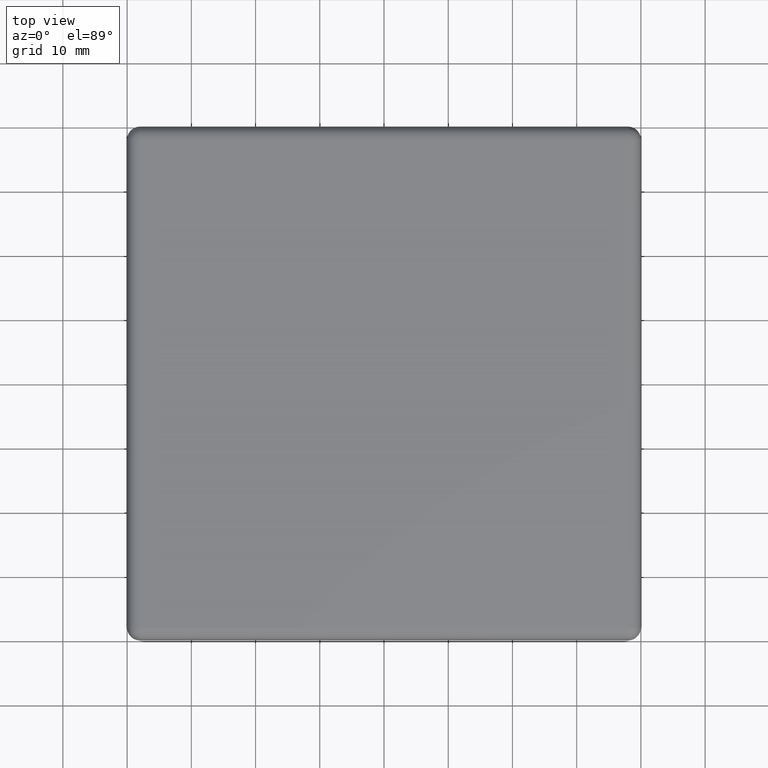
[diagram: clean part render]
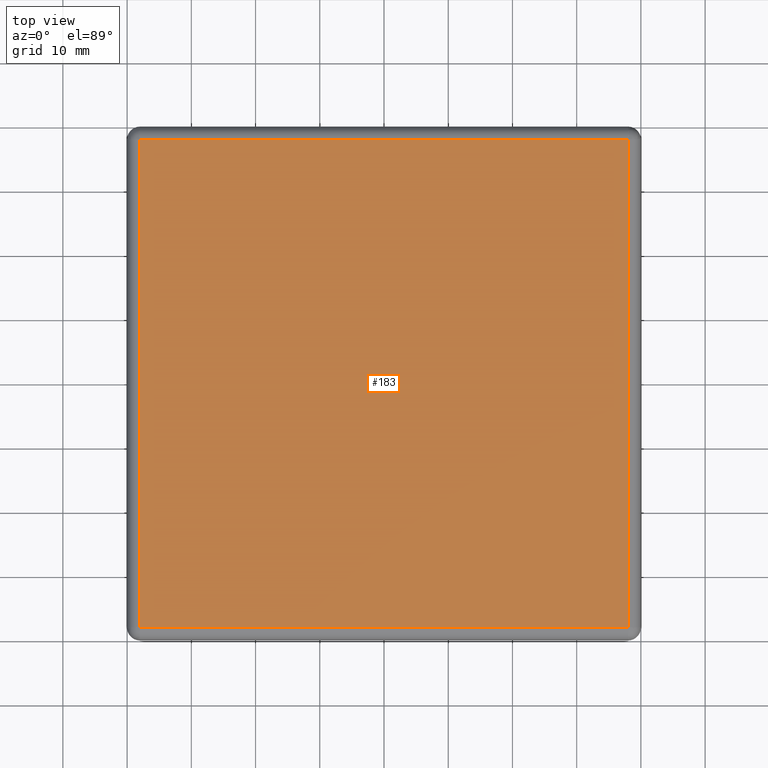
[diagram: same view with one face highlighted and labeled with its STEP entity id]
A machine part, top view. The second image highlights one B-rep face of the part: STEP entity #183.
In plain terms, the highlighted planar face has unit normal (0, 0, 1).
Its self-contained STEP definition (entity closure, byte-faithful):
#144=CARTESIAN_POINT('',(-48.000004724429267,-8.000004724580791,2.999999333987962));
#145=DIRECTION('',(0.0,0.0,1.0));
#146=DIRECTION('',(1.0,0.0,0.0));
#147=AXIS2_PLACEMENT_3D('',#144,#145,#146);
#148=PLANE('',#147);
#149=CARTESIAN_POINT('',(37.999999999839922,2.0,2.999999333987962));
#150=VERTEX_POINT('',#149);
#151=CARTESIAN_POINT('',(37.999999999839936,77.999999999679886,2.999999333987962));
#152=VERTEX_POINT('',#151);
#153=CARTESIAN_POINT('',(37.999999999839922,2.0,2.999999333987962));
#154=DIRECTION('',(0.0,1.0,0.0));
#155=VECTOR('',#154,75.999999999679886);
#156=LINE('',#153,#155);
#157=EDGE_CURVE('',#150,#152,#156,.T.);
#158=ORIENTED_EDGE('',*,*,#157,.T.);
#159=CARTESIAN_POINT('',(-37.999999999839922,77.999999999679900,2.999999333987962));
#160=VERTEX_POINT('',#159);
#161=CARTESIAN_POINT('',(37.999999999839936,77.999999999679886,2.999999333987962));
#162=DIRECTION('',(-1.0,0.0,0.0));
#163=VECTOR('',#162,75.999999999679858);
#164=LINE('',#161,#163);
#165=EDGE_CURVE('',#152,#160,#164,.T.);
#166=ORIENTED_EDGE('',*,*,#165,.T.);
#167=CARTESIAN_POINT('',(-37.999999999839929,2.0,2.999999333987962));
#168=VERTEX_POINT('',#167);
#169=CARTESIAN_POINT('',(-37.999999999839922,77.999999999679900,2.999999333987962));
#170=DIRECTION('',(0.0,-1.0,0.0));
#171=VECTOR('',#170,75.999999999679900);
#172=LINE('',#169,#171);
#173=EDGE_CURVE('',#160,#168,#172,.T.);
#174=ORIENTED_EDGE('',*,*,#173,.T.);
#175=CARTESIAN_POINT('',(-37.999999999839929,2.0,2.999999333987962));
#176=DIRECTION('',(1.0,0.0,0.0));
#177=VECTOR('',#176,75.999999999679858);
#178=LINE('',#175,#177);
#179=EDGE_CURVE('',#168,#150,#178,.T.);
#180=ORIENTED_EDGE('',*,*,#179,.T.);
#181=EDGE_LOOP('',(#158,#166,#174,#180));
#182=FACE_OUTER_BOUND('',#181,.T.);
#183=ADVANCED_FACE('',(#182),#148,.T.);